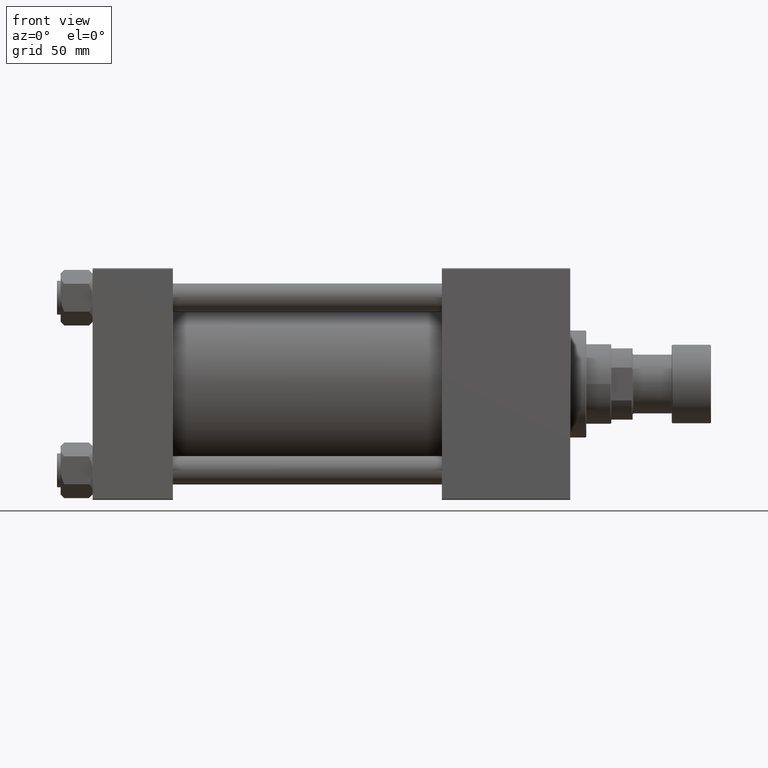
[diagram: clean part render]
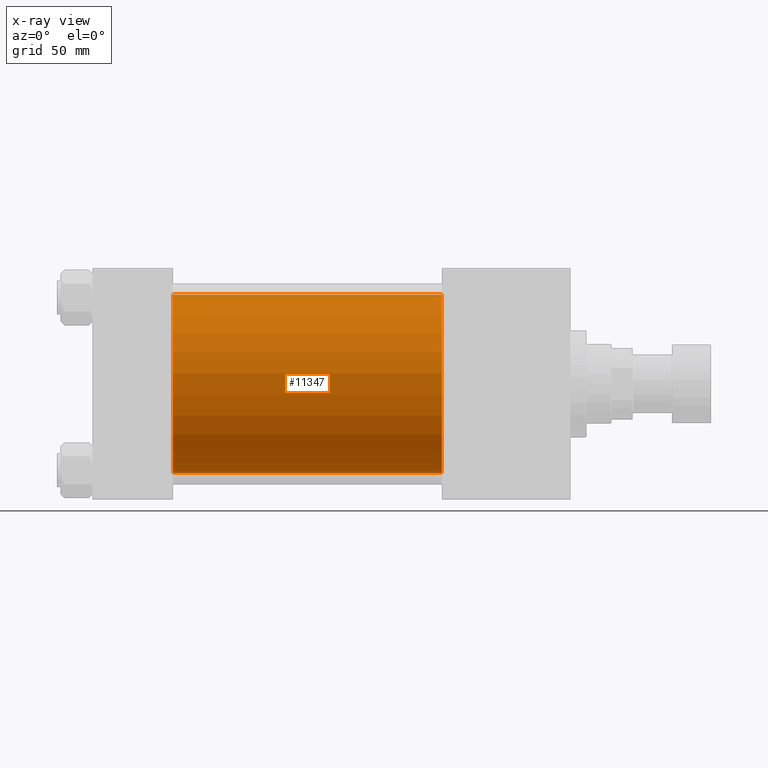
[diagram: x-ray — body ghosted, one internal face saturated and labeled with its STEP entity id]
A machine part, front view, then the same camera in x-ray: the body is ghosted and one INTERNAL B-rep face — a face not visible from any outside direction — is saturated and labeled: STEP entity #11347.
In plain terms, the highlighted cylindrical surface (partial cylindrical patch) has radius 50 mm, axis along (-1, -0, -0).
Its self-contained STEP definition (entity closure, byte-faithful):
#341 = DIRECTION ( 'NONE',  ( 1.000000000000000000, 0.000000000000000000, 0.000000000000000000 ) ) ;
#3230 = AXIS2_PLACEMENT_3D ( 'NONE', #29265, #33132, #5253 ) ;
#3664 = ORIENTED_EDGE ( 'NONE', *, *, #5460, .T. ) ;
#4205 = CARTESIAN_POINT ( 'NONE',  ( 196.0000000000000000, -2.602085213965210642E-15, 0.000000000000000000 ) ) ;
#5253 = DIRECTION ( 'NONE',  ( 0.000000000000000000, 0.000000000000000000, -1.000000000000000000 ) ) ;
#5460 = EDGE_CURVE ( 'NONE', #12898, #16608, #23238, .T. ) ;
#5893 = DIRECTION ( 'NONE',  ( -1.000000000000000000, -0.000000000000000000, -0.000000000000000000 ) ) ;
#6413 = CARTESIAN_POINT ( 'NONE',  ( 196.0000000000000000, 3.521148781771555838E-15, -50.00000000000000000 ) ) ;
#9554 = VECTOR ( 'NONE', #5893, 1000.000000000000000 ) ;
#10297 = LINE ( 'NONE', #6413, #9554 ) ;
#10339 = CARTESIAN_POINT ( 'NONE',  ( 45.00000000000000000, 3.521148781771555838E-15, -50.00000000000000000 ) ) ;
#11347 = ADVANCED_FACE ( 'NONE', ( #11571 ), #19061, .F. ) ;
#11571 = FACE_OUTER_BOUND ( 'NONE', #42333, .T. ) ;
#11829 = CARTESIAN_POINT ( 'NONE',  ( 196.0000000000000000, -2.602085213965210642E-15, 0.000000000000000000 ) ) ;
#12626 = EDGE_CURVE ( 'NONE', #12898, #18685, #18458, .T. ) ;
#12695 = AXIS2_PLACEMENT_3D ( 'NONE', #11829, #50855, #27317 ) ;
#12898 = VERTEX_POINT ( 'NONE', #36241 ) ;
#12946 = ORIENTED_EDGE ( 'NONE', *, *, #50457, .F. ) ;
#13181 = CARTESIAN_POINT ( 'NONE',  ( 196.0000000000000000, 3.521148781771555838E-15, -50.00000000000000000 ) ) ;
#14585 = CARTESIAN_POINT ( 'NONE',  ( 196.0000000000000000, -2.602085213965210642E-15, 50.00000000000000000 ) ) ;
#14657 = VECTOR ( 'NONE', #22071, 1000.000000000000000 ) ;
#16080 = DIRECTION ( 'NONE',  ( 0.000000000000000000, 0.000000000000000000, -1.000000000000000000 ) ) ;
#16608 = VERTEX_POINT ( 'NONE', #13181 ) ;
#18458 = LINE ( 'NONE', #14585, #14657 ) ;
#18685 = VERTEX_POINT ( 'NONE', #33863 ) ;
#19061 = CYLINDRICAL_SURFACE ( 'NONE', #12695, 50.00000000000000000 ) ;
#19916 = ORIENTED_EDGE ( 'NONE', *, *, #12626, .F. ) ;
#22071 = DIRECTION ( 'NONE',  ( -1.000000000000000000, -0.000000000000000000, -0.000000000000000000 ) ) ;
#23238 = CIRCLE ( 'NONE', #49677, 50.00000000000000000 ) ;
#24478 = VERTEX_POINT ( 'NONE', #10339 ) ;
#26359 = CIRCLE ( 'NONE', #3230, 50.00000000000000000 ) ;
#27317 = DIRECTION ( 'NONE',  ( 0.000000000000000000, 0.000000000000000000, 1.000000000000000000 ) ) ;
#29265 = CARTESIAN_POINT ( 'NONE',  ( 45.00000000000000000, -2.602085213965210642E-15, 0.000000000000000000 ) ) ;
#33132 = DIRECTION ( 'NONE',  ( 1.000000000000000000, 0.000000000000000000, 0.000000000000000000 ) ) ;
#33863 = CARTESIAN_POINT ( 'NONE',  ( 45.00000000000000000, -2.602085213965210642E-15, 50.00000000000000000 ) ) ;
#36241 = CARTESIAN_POINT ( 'NONE',  ( 196.0000000000000000, -2.602085213965210642E-15, 50.00000000000000000 ) ) ;
#38716 = EDGE_CURVE ( 'NONE', #16608, #24478, #10297, .T. ) ;
#42333 = EDGE_LOOP ( 'NONE', ( #3664, #43452, #12946, #19916 ) ) ;
#43452 = ORIENTED_EDGE ( 'NONE', *, *, #38716, .T. ) ;
#49677 = AXIS2_PLACEMENT_3D ( 'NONE', #4205, #341, #16080 ) ;
#50457 = EDGE_CURVE ( 'NONE', #18685, #24478, #26359, .T. ) ;
#50855 = DIRECTION ( 'NONE',  ( -1.000000000000000000, -0.000000000000000000, -0.000000000000000000 ) ) ;